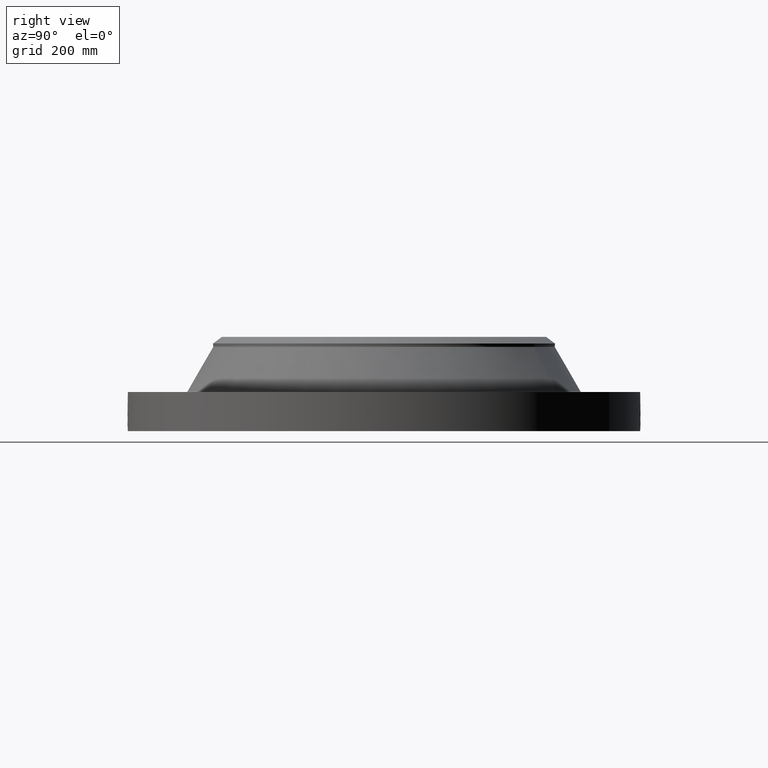
[diagram: clean part render]
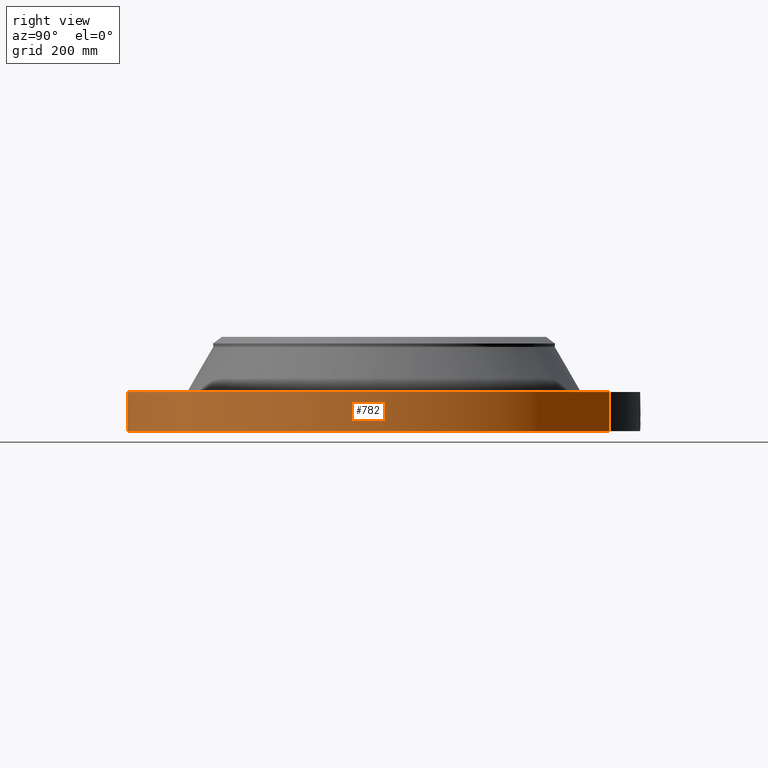
[diagram: same view with one face highlighted and labeled with its STEP entity id]
A machine part, right view. The second image highlights one B-rep face of the part: STEP entity #782.
In plain terms, the highlighted cylindrical surface (partial cylindrical patch) has radius 457.2 mm, axis along (0, 0, -1).
Its self-contained STEP definition (entity closure, byte-faithful):
#38=AXIS2_PLACEMENT_3D('Cylinder Axis2P3D',#35,#36,#37) ;
#169=AXIS2_PLACEMENT_3D('Circle Axis2P3D',#167,#168,$) ;
#686=AXIS2_PLACEMENT_3D('Circle Axis2P3D',#684,#685,$) ;
#35=CARTESIAN_POINT('Axis2P3D Location',(0.,0.,3.37000000001)) ;
#44=CARTESIAN_POINT('Vertex',(-8.62965969491,-15.7964861141,0.0600000000002)) ;
#46=CARTESIAN_POINT('Vertex',(8.62965969491,15.7964861141,0.0600000000002)) ;
#49=CARTESIAN_POINT('Line Origine',(-8.62965969491,-15.7964861141,1.43500000001)) ;
#53=CARTESIAN_POINT('Vertex',(-8.62965969491,-15.7964861141,2.81000000001)) ;
#60=CARTESIAN_POINT('Vertex',(8.62965969491,15.7964861141,2.81000000001)) ;
#63=CARTESIAN_POINT('Line Origine',(8.62965969491,15.7964861141,1.43500000001)) ;
#167=CARTESIAN_POINT('Axis2P3D Location',(0.,0.,0.0600000000002)) ;
#684=CARTESIAN_POINT('Axis2P3D Location',(0.,0.,2.81000000001)) ;
#696=CARTESIAN_POINT('Control Point',(0.000715916268791,-17.9999999858,1.29411846164)) ;
#697=CARTESIAN_POINT('Control Point',(0.0187947670104,-17.9999992668,1.29408195945)) ;
#698=CARTESIAN_POINT('Control Point',(0.0368704907817,-17.9999710998,1.29265734614)) ;
#699=CARTESIAN_POINT('Control Point',(0.0547316628318,-17.99991679,1.28986144223)) ;
#700=CARTESIAN_POINT('Vertex',(0.00071561728658,-17.9999999858,1.2941185108)) ;
#702=CARTESIAN_POINT('Vertex',(0.054723070488,-17.9999170677,1.28986280481)) ;
#706=CARTESIAN_POINT('Control Point',(0.054722976633,-17.9999168164,1.28986226213)) ;
#707=CARTESIAN_POINT('Control Point',(0.0953738332165,-17.9997932305,1.28552531456)) ;
#708=CARTESIAN_POINT('Control Point',(0.135409945979,-17.9995285052,1.27380449255)) ;
#709=CARTESIAN_POINT('Control Point',(0.172317078189,-17.9991751707,1.25545477223)) ;
#710=CARTESIAN_POINT('Vertex',(0.172317078189,-17.9991751707,1.25545477223)) ;
#714=CARTESIAN_POINT('Control Point',(0.0311785035352,-17.9999729973,0.531201562891)) ;
#715=CARTESIAN_POINT('Control Point',(0.0718024995038,-17.9999026308,0.536338161167)) ;
#716=CARTESIAN_POINT('Control Point',(0.111634499071,-17.9997190308,0.54672885578)) ;
#717=CARTESIAN_POINT('Control Point',(0.149741617216,-17.9994324956,0.56221850727)) ;
#718=CARTESIAN_POINT('Control Point',(0.239620396375,-17.9985293262,0.613169842998)) ;
#719=CARTESIAN_POINT('Control Point',(0.308806249445,-17.9974126624,0.690006161353)) ;
#720=CARTESIAN_POINT('Control Point',(0.34072228442,-17.9967939004,0.743754792699)) ;
#721=CARTESIAN_POINT('Control Point',(0.375373751711,-17.9960901162,0.841059821708)) ;
#722=CARTESIAN_POINT('Control Point',(0.377750076793,-17.9960345675,0.942362779163)) ;
#723=CARTESIAN_POINT('Control Point',(0.373383149188,-17.9961284653,0.982905031292)) ;
#724=CARTESIAN_POINT('Control Point',(0.350799748743,-17.9966011635,1.07574548383)) ;
#725=CARTESIAN_POINT('Control Point',(0.300979187988,-17.9975215948,1.15733410865)) ;
#726=CARTESIAN_POINT('Control Point',(0.264028464045,-17.9981368945,1.19844198089)) ;
#727=CARTESIAN_POINT('Control Point',(0.220353851516,-17.9987152854,1.23157154257)) ;
#728=CARTESIAN_POINT('Control Point',(0.172317078189,-17.9991751707,1.25545477223)) ;
#729=CARTESIAN_POINT('Vertex',(0.0311785035352,-17.9999729973,0.531201562891)) ;
#733=CARTESIAN_POINT('Control Point',(0.0311785035352,-17.9999729973,0.531201562891)) ;
#734=CARTESIAN_POINT('Control Point',(0.0207810348001,-17.9999910072,0.530876353489)) ;
#735=CARTESIAN_POINT('Control Point',(0.0103754059314,-18.0000000016,0.5309342353)) ;
#736=CARTESIAN_POINT('Control Point',(-2.72878352964E-006,-18.0000000001,0.531374667806)) ;
#737=CARTESIAN_POINT('Vertex',(-2.72878354635E-006,-18.0000000001,0.531374667806)) ;
#741=CARTESIAN_POINT('Control Point',(-0.192490992805,-17.9989707267,0.587658904988)) ;
#742=CARTESIAN_POINT('Control Point',(-0.148953542629,-17.9994363404,0.56218495781)) ;
#743=CARTESIAN_POINT('Control Point',(-0.101107482193,-17.9998082664,0.543830382584)) ;
#744=CARTESIAN_POINT('Control Point',(-0.0508027302812,-17.9999999924,0.533530543737)) ;
#745=CARTESIAN_POINT('Control Point',(-2.72878354562E-006,-18.0000000001,0.531374667806)) ;
#746=CARTESIAN_POINT('Vertex',(-0.192490992805,-17.9989707267,0.587658904988)) ;
#750=CARTESIAN_POINT('Control Point',(-0.192490992805,-17.9989707267,0.587658904988)) ;
#751=CARTESIAN_POINT('Control Point',(-0.249225140634,-17.9983639802,0.62085429578)) ;
#752=CARTESIAN_POINT('Control Point',(-0.29911862737,-17.9976068279,0.665382621905)) ;
#753=CARTESIAN_POINT('Control Point',(-0.339016735981,-17.9968404577,0.719620461574)) ;
#754=CARTESIAN_POINT('Control Point',(-0.382904584864,-17.9959349998,0.817936937112)) ;
#755=CARTESIAN_POINT('Control Point',(-0.391223224511,-17.9957468042,0.923210605865)) ;
#756=CARTESIAN_POINT('Control Point',(-0.389017375881,-17.9957960737,0.963428947577)) ;
#757=CARTESIAN_POINT('Control Point',(-0.369349141321,-17.9962276358,1.06643517051)) ;
#758=CARTESIAN_POINT('Control Point',(-0.315771155127,-17.9972806993,1.15717933687)) ;
#759=CARTESIAN_POINT('Control Point',(-0.271217966974,-17.9980645582,1.20479213962)) ;
#760=CARTESIAN_POINT('Control Point',(-0.190427156267,-17.9991387671,1.26072522642)) ;
#761=CARTESIAN_POINT('Control Point',(-0.0985097274311,-17.9997740421,1.2878938836)) ;
#762=CARTESIAN_POINT('Control Point',(-0.0657534719817,-17.9999256067,1.29368529426)) ;
#763=CARTESIAN_POINT('Control Point',(-0.0327250899361,-18.0000000471,1.29575873174)) ;
#764=CARTESIAN_POINT('Control Point',(2.58579355584E-005,-18.0000000001,1.29415298429)) ;
#765=CARTESIAN_POINT('Vertex',(2.58579355492E-005,-18.0000000001,1.29415298429)) ;
#769=CARTESIAN_POINT('Control Point',(0.000715617277093,-17.9999999858,1.29411851078)) ;
#770=CARTESIAN_POINT('Control Point',(0.000370762243298,-17.9999999996,1.29413607398)) ;
#771=CARTESIAN_POINT('Control Point',(2.58579404369E-005,-18.0000000001,1.29415298429)) ;
#36=DIRECTION('Axis2P3D Direction',(0.,0.,-0.0393700787402)) ;
#37=DIRECTION('Axis2P3D XDirection',(0.0188750212049,0.0345504945626,0.)) ;
#50=DIRECTION('Vector Direction',(0.,0.,-0.0393700787402)) ;
#64=DIRECTION('Vector Direction',(0.,0.,-0.0393700787402)) ;
#168=DIRECTION('Axis2P3D Direction',(0.,0.,-0.0393700787402)) ;
#685=DIRECTION('Axis2P3D Direction',(0.,0.,-0.0393700787402)) ;
#51=VECTOR('Line Direction',#50,0.0393700787402) ;
#65=VECTOR('Line Direction',#64,0.0393700787402) ;
#690=ORIENTED_EDGE('',*,*,#171,.F.) ;
#691=ORIENTED_EDGE('',*,*,#67,.T.) ;
#692=ORIENTED_EDGE('',*,*,#688,.T.) ;
#693=ORIENTED_EDGE('',*,*,#55,.F.) ;
#774=ORIENTED_EDGE('',*,*,#704,.T.) ;
#775=ORIENTED_EDGE('',*,*,#712,.T.) ;
#776=ORIENTED_EDGE('',*,*,#731,.F.) ;
#777=ORIENTED_EDGE('',*,*,#739,.T.) ;
#778=ORIENTED_EDGE('',*,*,#748,.F.) ;
#779=ORIENTED_EDGE('',*,*,#767,.T.) ;
#780=ORIENTED_EDGE('',*,*,#772,.F.) ;
#781=FACE_BOUND('',#773,.T.) ;
#782=ADVANCED_FACE('PartBody',(#694,#781),#39,.T.) ;
#695=B_SPLINE_CURVE_WITH_KNOTS('',3,(#696,#697,#698,#699),.UNSPECIFIED.,.F.,.U.,(4,4),(34.6167850148,36.6224614692),.UNSPECIFIED.) ;
#705=B_SPLINE_CURVE_WITH_KNOTS('',3,(#706,#707,#708,#709),.UNSPECIFIED.,.F.,.U.,(4,4),(0.,4.59363155674),.UNSPECIFIED.) ;
#713=B_SPLINE_CURVE_WITH_KNOTS('',5,(#714,#715,#716,#717,#718,#719,#720,#721,#722,#723,#724,#725,#726,#727,#728),.UNSPECIFIED.,.F.,.U.,(6,3,3,3,6),(0.,7.11615119465,18.0025199633,25.3409690996,35.3057659836),.UNSPECIFIED.) ;
#732=B_SPLINE_CURVE_WITH_KNOTS('',3,(#733,#734,#735,#736),.UNSPECIFIED.,.F.,.U.,(4,4),(0.,1.08463646199),.UNSPECIFIED.) ;
#740=B_SPLINE_CURVE_WITH_KNOTS('',4,(#741,#742,#743,#744,#745),.UNSPECIFIED.,.F.,.U.,(5,5),(0.,7.07892575989),.UNSPECIFIED.) ;
#749=B_SPLINE_CURVE_WITH_KNOTS('',5,(#750,#751,#752,#753,#754,#755,#756,#757,#758,#759,#760,#761,#762,#763,#764),.UNSPECIFIED.,.F.,.U.,(6,3,3,3,6),(0.,11.5307860791,18.6312315282,30.1312120291,36.2530440868),.UNSPECIFIED.) ;
#768=B_SPLINE_CURVE_WITH_KNOTS('',2,(#769,#770,#771),.UNSPECIFIED.,.F.,.U.,(3,3),(1.01704989143,1.04283780222),.UNSPECIFIED.) ;
#170=CIRCLE('generated circle',#169,18.0000000001) ;
#687=CIRCLE('generated circle',#686,18.0000000001) ;
#39=CYLINDRICAL_SURFACE('generated cylinder',#38,18.0000000001) ;
#55=EDGE_CURVE('',#45,#54,#52,.F.) ;
#67=EDGE_CURVE('',#47,#61,#66,.F.) ;
#171=EDGE_CURVE('',#47,#45,#170,.T.) ;
#688=EDGE_CURVE('',#61,#54,#687,.T.) ;
#704=EDGE_CURVE('',#701,#703,#695,.T.) ;
#712=EDGE_CURVE('',#703,#711,#705,.T.) ;
#731=EDGE_CURVE('',#730,#711,#713,.T.) ;
#739=EDGE_CURVE('',#730,#738,#732,.T.) ;
#748=EDGE_CURVE('',#747,#738,#740,.T.) ;
#767=EDGE_CURVE('',#747,#766,#749,.T.) ;
#772=EDGE_CURVE('',#701,#766,#768,.T.) ;
#689=EDGE_LOOP('',(#690,#691,#692,#693)) ;
#773=EDGE_LOOP('',(#774,#775,#776,#777,#778,#779,#780)) ;
#694=FACE_OUTER_BOUND('',#689,.T.) ;
#52=LINE('Line',#49,#51) ;
#66=LINE('Line',#63,#65) ;
#45=VERTEX_POINT('',#44) ;
#47=VERTEX_POINT('',#46) ;
#54=VERTEX_POINT('',#53) ;
#61=VERTEX_POINT('',#60) ;
#701=VERTEX_POINT('',#700) ;
#703=VERTEX_POINT('',#702) ;
#711=VERTEX_POINT('',#710) ;
#730=VERTEX_POINT('',#729) ;
#738=VERTEX_POINT('',#737) ;
#747=VERTEX_POINT('',#746) ;
#766=VERTEX_POINT('',#765) ;